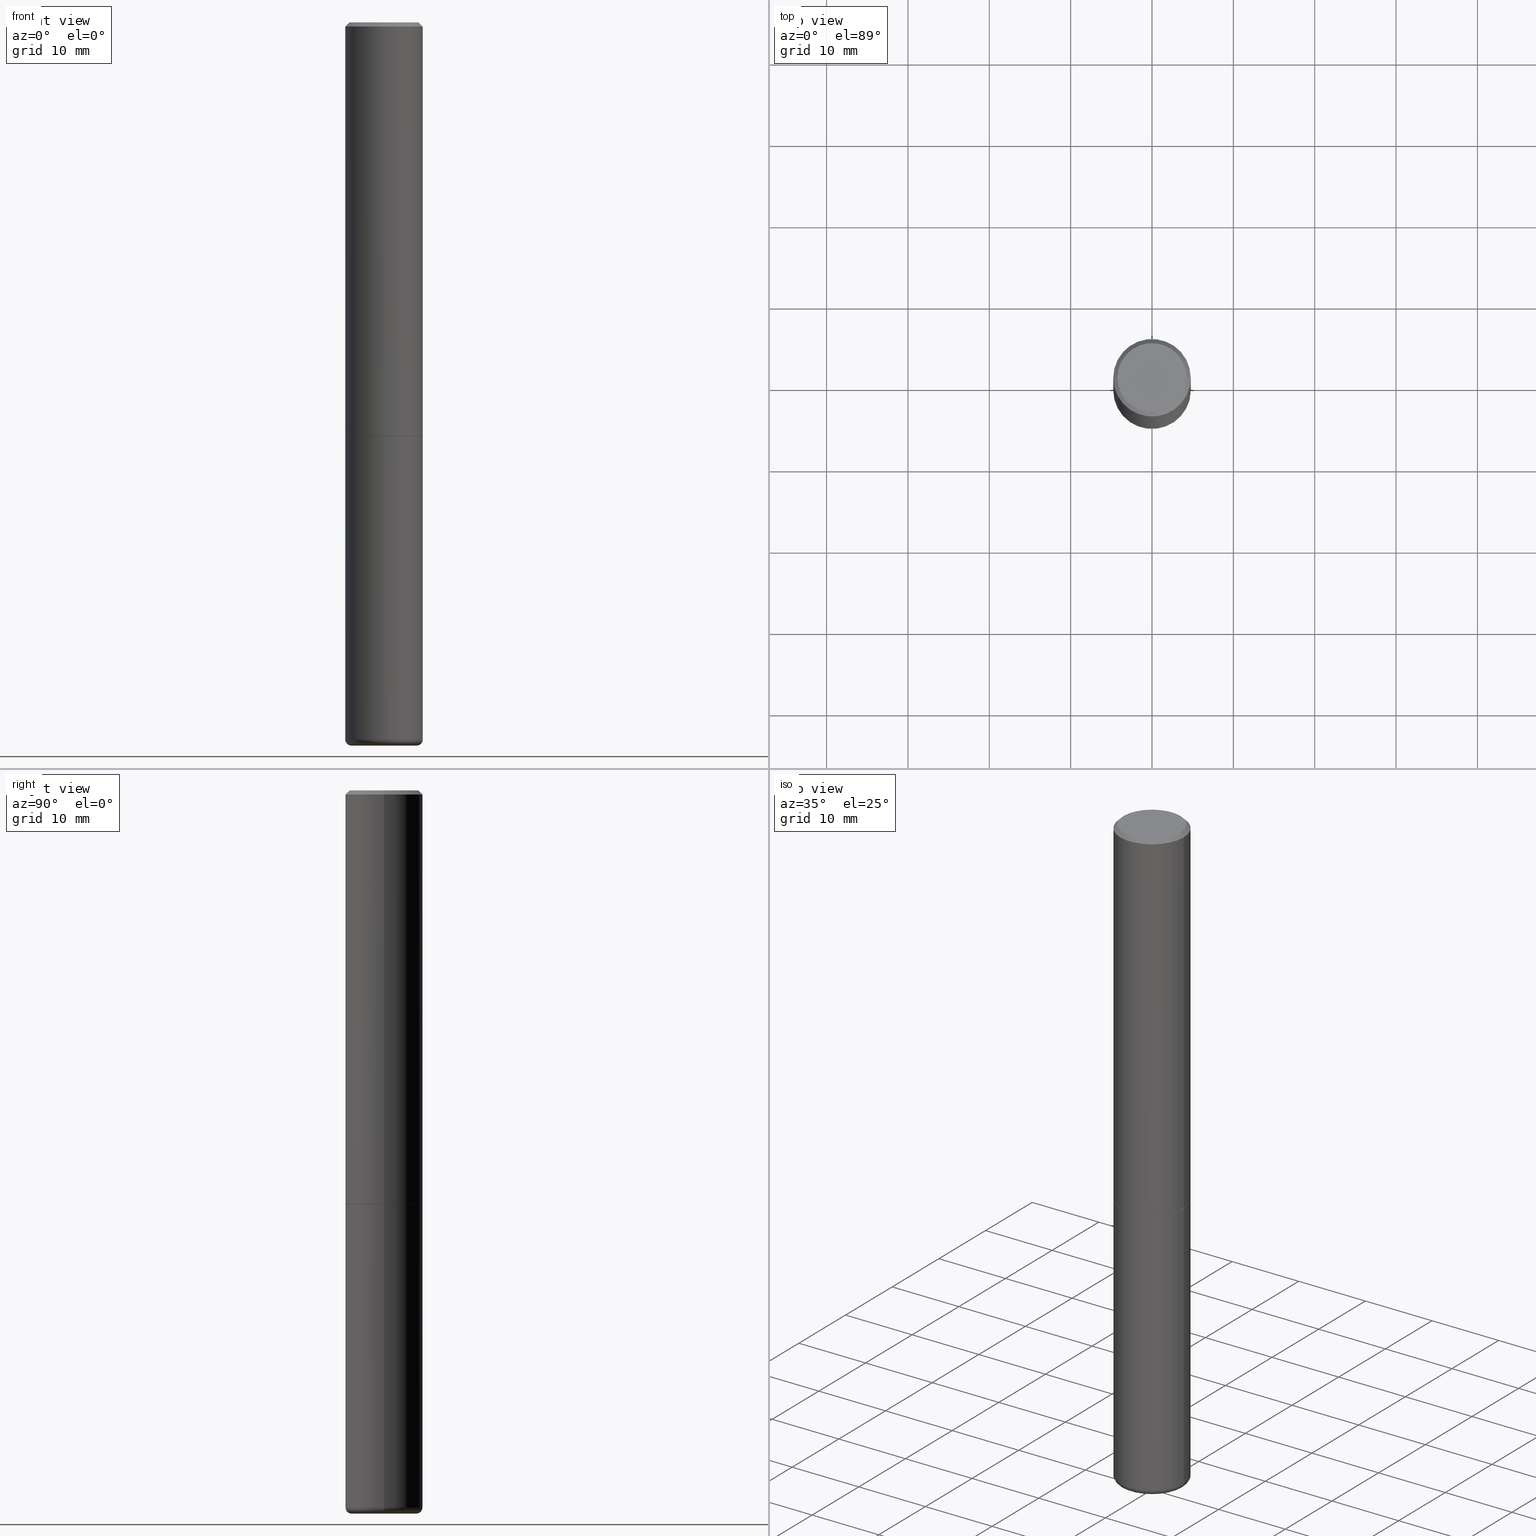
[diagram: canonical four-view strip — front | top / right | iso, engineering-drawing reading convention]
A machine part, canonical four-view strip (front | top / right | iso — engineering-drawing reading convention). The complete STEP part file that produces these views, byte-faithful:
ISO-10303-21;
HEADER;
FILE_DESCRIPTION (( 'STEP AP203' ),
    '1' );
FILE_NAME ('77169.STEP',
    '2024-03-06T16:15:41',
    ( '' ),
    ( '' ),
    'SwSTEP 2.0',
    'SolidWorks 2023',
    '' );
FILE_SCHEMA (( 'CONFIG_CONTROL_DESIGN' ));
ENDSEC;

DATA;
#1 = DIRECTION ( 'NONE',  ( -2.445468806185136597E-29, 3.491481338843145583E-15, 1.000000000000000000 ) ) ;
#2 = DATE_AND_TIME ( #129, #83 ) ;
#3 = PLANE ( 'NONE',  #104 ) ;
#4 = CARTESIAN_POINT ( 'NONE',  ( 0.1875000000000001388, -1.309305502066175994E-15, 9.142831454617388019E-30 ) ) ;
#5 = ORIENTED_EDGE ( 'NONE', *, *, #133, .F. ) ;
#6 = CARTESIAN_POINT ( 'NONE',  ( 4.890937612370272633E-29, -6.982962677686290376E-15, -1.999999999999999778 ) ) ;
#7 = COORDINATED_UNIVERSAL_TIME_OFFSET ( 5, 0, .BEHIND. ) ;
#8 = APPROVAL_ROLE ( '' ) ;
#9 =( NAMED_UNIT ( * ) PLANE_ANGLE_UNIT ( ) SI_UNIT ( $, .RADIAN. ) );
#10 = MECHANICAL_CONTEXT ( 'NONE', #282, 'mechanical' ) ;
#11 = CC_DESIGN_PERSON_AND_ORGANIZATION_ASSIGNMENT ( #185, #82, ( #414 ) ) ;
#12 = ORIENTED_EDGE ( 'NONE', *, *, #309, .F. ) ;
#13 = PERSON_AND_ORGANIZATION ( #154, #269 ) ;
#14 = CARTESIAN_POINT ( 'NONE',  ( 4.890937612370272633E-29, -6.982962677686290376E-15, -1.999999999999999778 ) ) ;
#15 = CARTESIAN_POINT ( 'NONE',  ( 0.1875000000000002498, -8.288776698413623955E-15, -1.998999999999999666 ) ) ;
#16 = ORIENTED_EDGE ( 'NONE', *, *, #411, .T. ) ;
#17 = AXIS2_PLACEMENT_3D ( 'NONE', #248, #219, #350 ) ;
#18 = COORDINATED_UNIVERSAL_TIME_OFFSET ( 5, 0, .BEHIND. ) ;
#19 = PRODUCT ( '77169', '77169', '', ( #10 ) ) ;
#20 = PERSON_AND_ORGANIZATION_ROLE ( 'classification_officer' ) ;
#21 = ORIENTED_EDGE ( 'NONE', *, *, #153, .F. ) ;
#22 = VERTEX_POINT ( 'NONE', #91 ) ;
#23 = EDGE_CURVE ( 'NONE', #274, #98, #88, .T. ) ;
#24 = CIRCLE ( 'NONE', #307, 0.1865000000000000546 ) ;
#25 = AXIS2_PLACEMENT_3D ( 'NONE', #35, #415, #321 ) ;
#26 = CC_DESIGN_SECURITY_CLASSIFICATION ( #184, ( #414 ) ) ;
#27 = ORIENTED_EDGE ( 'NONE', *, *, #138, .T. ) ;
#28 = EDGE_CURVE ( 'NONE', #78, #401, #163, .T. ) ;
#29 = DIRECTION ( 'NONE',  ( -1.000000000000000000, 7.105427357601001859E-15, 0.000000000000000000 ) ) ;
#30 = EDGE_LOOP ( 'NONE', ( #116, #231, #12, #270 ) ) ;
#31 = DIRECTION ( 'NONE',  ( 2.445468806185136597E-29, -3.491481338843145583E-15, -1.000000000000000000 ) ) ;
#32 = AXIS2_PLACEMENT_3D ( 'NONE', #384, #93, #298 ) ;
#33 = DIRECTION ( 'NONE',  ( -6.982962677686266711E-15, -1.000000000000000000, 3.491481338843145583E-15 ) ) ;
#34 = PRODUCT_DEFINITION ( 'UNKNOWN', '', #414, #186 ) ;
#35 = CARTESIAN_POINT ( 'NONE',  ( 4.890937612370282792E-31, -6.982962677686303935E-17, -0.02000000000000003858 ) ) ;
#36 = DIRECTION ( 'NONE',  ( 1.000000000000000000, -6.982962677686261189E-15, 0.000000000000000000 ) ) ;
#37 = ORIENTED_EDGE ( 'NONE', *, *, #210, .F. ) ;
#38 = CIRCLE ( 'NONE', #32, 0.1875000000000000278 ) ;
#39 = PERSON_AND_ORGANIZATION ( #154, #269 ) ;
#40 = CARTESIAN_POINT ( 'NONE',  ( 0.1575000000000000289, -1.332000130768659288E-14, -3.499999999999999112 ) ) ;
#41 = ORIENTED_EDGE ( 'NONE', *, *, #280, .T. ) ;
#42 = FACE_OUTER_BOUND ( 'NONE', #388, .T. ) ;
#43 = DIRECTION ( 'NONE',  ( -2.438088387897960049E-29, 3.491481338843145188E-15, 1.000000000000000000 ) ) ;
#44 = CIRCLE ( 'NONE', #122, 0.1875000000000000278 ) ;
#45 = CARTESIAN_POINT ( 'NONE',  ( 0.1875000000000000555, -1.356173001359025663E-15, -0.02000000000000003858 ) ) ;
#46 = EDGE_LOOP ( 'NONE', ( #273, #193, #187, #341 ) ) ;
#47 = ORIENTED_EDGE ( 'NONE', *, *, #59, .T. ) ;
#48 = APPROVAL_STATUS ( 'not_yet_approved' ) ;
#49 = PERSON_AND_ORGANIZATION_ROLE ( 'design_owner' ) ;
#50 = PERSON_AND_ORGANIZATION_ROLE ( 'creator' ) ;
#51 = ORIENTED_EDGE ( 'NONE', *, *, #300, .T. ) ;
#52 = VECTOR ( 'NONE', #331, 39.37007874015748143 ) ;
#53 = ORIENTED_EDGE ( 'NONE', *, *, #285, .T. ) ;
#54 = CIRCLE ( 'NONE', #290, 0.1675000000000000655 ) ;
#55 = EDGE_CURVE ( 'NONE', #278, #378, #117, .T. ) ;
#56 = UNCERTAINTY_MEASURE_WITH_UNIT (LENGTH_MEASURE( 1.000000000000000082E-05 ), #108, 'distance_accuracy_value', 'NONE');
#57 = DATE_AND_TIME ( #192, #405 ) ;
#58 = ORIENTED_EDGE ( 'NONE', *, *, #59, .F. ) ;
#59 = EDGE_CURVE ( 'NONE', #121, #22, #289, .T. ) ;
#60 = ORIENTED_EDGE ( 'NONE', *, *, #173, .T. ) ;
#61 = CARTESIAN_POINT ( 'NONE',  ( 0.1575000000000000289, -1.321525686752130109E-14, -3.469999999999999751 ) ) ;
#62 = VECTOR ( 'NONE', #392, 39.37007874015748143 ) ;
#63 = DIRECTION ( 'NONE',  ( -1.000000000000000000, 6.982962677686265922E-15, 0.000000000000000000 ) ) ;
#64 = VECTOR ( 'NONE', #340, 39.37007874015748143 ) ;
#65 = EDGE_CURVE ( 'NONE', #410, #119, #319, .T. ) ;
#66 = CARTESIAN_POINT ( 'NONE',  ( 8.485776757462424574E-29, -1.211544024578571439E-14, -3.469999999999999751 ) ) ;
#67 = DIRECTION ( 'NONE',  ( -2.445468806185136597E-29, 3.491481338843145583E-15, 1.000000000000000000 ) ) ;
#68 = CYLINDRICAL_SURFACE ( 'NONE', #268, 0.1875000000000001388 ) ;
#69 = ORIENTED_EDGE ( 'NONE', *, *, #285, .F. ) ;
#70 = CARTESIAN_POINT ( 'NONE',  ( 4.890937612370282792E-31, -6.982962677686303935E-17, -0.02000000000000003858 ) ) ;
#71 = EDGE_CURVE ( 'NONE', #410, #274, #24, .T. ) ;
#72 = CARTESIAN_POINT ( 'NONE',  ( -0.1875000000000000278, 1.332267629550188046E-15, -9.223003294227947991E-30 ) ) ;
#73 =( GEOMETRIC_REPRESENTATION_CONTEXT ( 3 ) GLOBAL_UNCERTAINTY_ASSIGNED_CONTEXT ( ( #56 ) ) GLOBAL_UNIT_ASSIGNED_CONTEXT ( ( #108, #9, #75 ) ) REPRESENTATION_CONTEXT ( 'NONE', 'WORKASPACE' ) );
#74 = LINE ( 'NONE', #396, #64 ) ;
#75 =( NAMED_UNIT ( * ) SI_UNIT ( $, .STERADIAN. ) SOLID_ANGLE_UNIT ( ) );
#76 = AXIS2_PLACEMENT_3D ( 'NONE', #387, #67, #330 ) ;
#77 = EDGE_CURVE ( 'NONE', #119, #365, #89, .T. ) ;
#78 = VERTEX_POINT ( 'NONE', #223 ) ;
#79 = APPLICATION_PROTOCOL_DEFINITION ( 'international standard', 'config_control_design', 1994, #282 ) ;
#80 = APPROVAL_STATUS ( 'not_yet_approved' ) ;
#81 = ADVANCED_FACE ( 'NONE', ( #205 ), #100, .T. ) ;
#82 = PERSON_AND_ORGANIZATION_ROLE ( 'design_supplier' ) ;
#83 = LOCAL_TIME ( 11, 15, 41.00000000000000000, #127 ) ;
#84 = APPROVAL_PERSON_ORGANIZATION ( #313, #169, #244 ) ;
#85 = CARTESIAN_POINT ( 'NONE',  ( -0.1575000000000000289, -1.094212624668219072E-14, -3.499999999999999112 ) ) ;
#86 = EDGE_LOOP ( 'NONE', ( #58, #207, #16, #279 ) ) ;
#87 = CC_DESIGN_PERSON_AND_ORGANIZATION_ASSIGNMENT ( #379, #50, ( #414 ) ) ;
#88 = LINE ( 'NONE', #287, #52 ) ;
#89 = LINE ( 'NONE', #4, #318 ) ;
#90 = AXIS2_PLACEMENT_3D ( 'NONE', #99, #263, #29 ) ;
#91 = CARTESIAN_POINT ( 'NONE',  ( -0.1675000000000000655, 1.204561061900881244E-15, -3.414809992081159176E-17 ) ) ;
#92 = CYLINDRICAL_SURFACE ( 'NONE', #151, 0.1875000000000000278 ) ;
#93 = DIRECTION ( 'NONE',  ( -2.445468806185136597E-29, 3.491481338843145583E-15, 1.000000000000000000 ) ) ;
#94 = EDGE_CURVE ( 'NONE', #167, #380, #252, .T. ) ;
#95 = AXIS2_PLACEMENT_3D ( 'NONE', #364, #413, #63 ) ;
#96 = DIRECTION ( 'NONE',  ( -2.445468806185136597E-29, 3.491481338843145583E-15, 1.000000000000000000 ) ) ;
#97 = PRODUCT_RELATED_PRODUCT_CATEGORY ( 'detail', '', ( #19 ) ) ;
#98 = VERTEX_POINT ( 'NONE', #230 ) ;
#99 = CARTESIAN_POINT ( 'NONE',  ( -0.1575000000000000289, -1.099633543696355521E-14, -3.469999999999999751 ) ) ;
#100 = CYLINDRICAL_SURFACE ( 'NONE', #218, 0.1875000000000000278 ) ;
#101 = CARTESIAN_POINT ( 'NONE',  ( 8.485776757462424574E-29, -1.211544024578571439E-14, -3.469999999999999751 ) ) ;
#102 = CARTESIAN_POINT ( 'NONE',  ( 0.000000000000000000, 0.000000000000000000, 0.000000000000000000 ) ) ;
#103 = DIRECTION ( 'NONE',  ( -2.445468806185136597E-29, 3.491481338843145583E-15, 1.000000000000000000 ) ) ;
#104 = AXIS2_PLACEMENT_3D ( 'NONE', #391, #195, #367 ) ;
#105 = CARTESIAN_POINT ( 'NONE',  ( 0.000000000000000000, 0.000000000000000000, 0.000000000000000000 ) ) ;
#106 = LENGTH_MEASURE_WITH_UNIT ( LENGTH_MEASURE( 0.02539999999999999897 ), #174 );
#107 = ADVANCED_FACE ( 'NONE', ( #264 ), #68, .T. ) ;
#108 =( CONVERSION_BASED_UNIT ( 'INCH', #106 ) LENGTH_UNIT ( ) NAMED_UNIT ( #149 ) );
#109 = FACE_OUTER_BOUND ( 'NONE', #46, .T. ) ;
#110 = LINE ( 'NONE', #242, #164 ) ;
#111 = ADVANCED_FACE ( 'NONE', ( #311 ), #113, .T. ) ;
#112 = SECURITY_CLASSIFICATION_LEVEL ( 'unclassified' ) ;
#113 = TOROIDAL_SURFACE ( 'NONE', #352, 0.1575000000000000289, 0.02999999999999969705 ) ;
#114 = AXIS2_PLACEMENT_3D ( 'NONE', #344, #267, #304 ) ;
#115 = ORIENTED_EDGE ( 'NONE', *, *, #55, .T. ) ;
#116 = ORIENTED_EDGE ( 'NONE', *, *, #71, .T. ) ;
#117 = LINE ( 'NONE', #72, #146 ) ;
#118 = APPROVAL_DATE_TIME ( #215, #169 ) ;
#119 = VERTEX_POINT ( 'NONE', #15 ) ;
#120 = DIRECTION ( 'NONE',  ( 1.000000000000000000, -6.982962677686265922E-15, 0.000000000000000000 ) ) ;
#121 = VERTEX_POINT ( 'NONE', #403 ) ;
#122 = AXIS2_PLACEMENT_3D ( 'NONE', #394, #103, #337 ) ;
#123 = MANIFOLD_SOLID_BREP ( 'Body-Move/Copy2[2]', #296 ) ;
#124 = CARTESIAN_POINT ( 'NONE',  ( -0.1865000000000000546, -5.652502021145479556E-15, -1.999999999999999778 ) ) ;
#125 = MANIFOLD_SOLID_BREP ( 'Body-Move/Copy2[1]', #332 ) ;
#126 = FACE_OUTER_BOUND ( 'NONE', #86, .T. ) ;
#127 = COORDINATED_UNIVERSAL_TIME_OFFSET ( 5, 0, .BEHIND. ) ;
#128 = DIRECTION ( 'NONE',  ( 1.000000000000000000, -6.982962677686266711E-15, 0.000000000000000000 ) ) ;
#129 = CALENDAR_DATE ( 2024, 6, 3 ) ;
#130 = AXIS2_PLACEMENT_3D ( 'NONE', #6, #43, #143 ) ;
#131 = DIRECTION ( 'NONE',  ( -2.445468806185136597E-29, 3.491481338843145583E-15, 1.000000000000000000 ) ) ;
#132 = DIRECTION ( 'NONE',  ( 1.000000000000000000, -6.982962677686261189E-15, 0.000000000000000000 ) ) ;
#133 = EDGE_CURVE ( 'NONE', #98, #194, #110, .T. ) ;
#134 = FACE_OUTER_BOUND ( 'NONE', #155, .T. ) ;
#135 = DIRECTION ( 'NONE',  ( -2.445468806185136597E-29, 3.491481338843145583E-15, 1.000000000000000000 ) ) ;
#136 = VECTOR ( 'NONE', #261, 39.37007874015748143 ) ;
#137 = CALENDAR_DATE ( 2024, 6, 3 ) ;
#138 = EDGE_CURVE ( 'NONE', #274, #410, #305, .T. ) ;
#139 = DIRECTION ( 'NONE',  ( 1.000000000000000000, -6.982962677686266711E-15, 4.876176775795936914E-29 ) ) ;
#140 = DIRECTION ( 'NONE',  ( -2.445468806185136597E-29, 3.491481338843145583E-15, 1.000000000000000000 ) ) ;
#141 = EDGE_LOOP ( 'NONE', ( #247, #314 ) ) ;
#142 = SHAPE_DEFINITION_REPRESENTATION ( #281, #171 ) ;
#143 = DIRECTION ( 'NONE',  ( 1.000000000000000000, -6.982962677686265922E-15, 4.876176775795935793E-29 ) ) ;
#144 = CARTESIAN_POINT ( 'NONE',  ( 8.485776757462424574E-29, -1.211544024578571439E-14, -3.469999999999999751 ) ) ;
#145 = ORIENTED_EDGE ( 'NONE', *, *, #196, .F. ) ;
#146 = VECTOR ( 'NONE', #170, 39.37007874015748143 ) ;
#147 = CIRCLE ( 'NONE', #357, 0.1875000000000000278 ) ;
#148 = CC_DESIGN_APPROVAL ( #169, ( #184 ) ) ;
#149 = DIMENSIONAL_EXPONENTS ( 1.000000000000000000, 0.000000000000000000, 0.000000000000000000, 0.000000000000000000, 0.000000000000000000, 0.000000000000000000, 0.000000000000000000 ) ;
#150 = DIRECTION ( 'NONE',  ( 1.000000000000000000, -6.982962677686261189E-15, 0.000000000000000000 ) ) ;
#151 = AXIS2_PLACEMENT_3D ( 'NONE', #161, #224, #158 ) ;
#152 = APPROVAL_DATE_TIME ( #57, #228 ) ;
#153 = EDGE_CURVE ( 'NONE', #401, #378, #44, .T. ) ;
#154 = PERSON ( 'UNSPECIFIED', 'UNSPECIFIED', 'UNSPECIFIED', ('UNSPECIFIED'), ('UNSPECIFIED'), ('UNSPECIFIED') ) ;
#155 = EDGE_LOOP ( 'NONE', ( #41, #47 ) ) ;
#156 = PERSON_AND_ORGANIZATION ( #154, #269 ) ;
#157 = CARTESIAN_POINT ( 'NONE',  ( 0.000000000000000000, 0.000000000000000000, 0.000000000000000000 ) ) ;
#158 = DIRECTION ( 'NONE',  ( 1.000000000000000000, -6.982962677686265922E-15, 4.876176775795935793E-29 ) ) ;
#159 = AXIS2_PLACEMENT_3D ( 'NONE', #225, #292, #232 ) ;
#160 = PERSON_AND_ORGANIZATION_ROLE ( 'creator' ) ;
#161 = CARTESIAN_POINT ( 'NONE',  ( 0.000000000000000000, 0.000000000000000000, 0.000000000000000000 ) ) ;
#162 = FACE_OUTER_BOUND ( 'NONE', #284, .T. ) ;
#163 = LINE ( 'NONE', #363, #62 ) ;
#164 = VECTOR ( 'NONE', #209, 39.37007874015748143 ) ;
#165 = CIRCLE ( 'NONE', #25, 0.1875000000000000555 ) ;
#166 = FACE_OUTER_BOUND ( 'NONE', #374, .T. ) ;
#167 = VERTEX_POINT ( 'NONE', #85 ) ;
#168 = CYLINDRICAL_SURFACE ( 'NONE', #276, 0.1875000000000001388 ) ;
#169 = APPROVAL ( #80, 'UNSPECIFIED' ) ;
#170 = DIRECTION ( 'NONE',  ( -2.445468806185136877E-29, 3.491481338843145188E-15, 1.000000000000000000 ) ) ;
#171 = ADVANCED_BREP_SHAPE_REPRESENTATION ( '77169', ( #125, #123, #312 ), #73 ) ;
#172 = APPROVAL_STATUS ( 'not_yet_approved' ) ;
#173 = EDGE_CURVE ( 'NONE', #380, #167, #220, .T. ) ;
#174 =( LENGTH_UNIT ( ) NAMED_UNIT ( * ) SI_UNIT ( $, .METRE. ) );
#175 = CIRCLE ( 'NONE', #333, 0.1875000000000002498 ) ;
#176 = CONICAL_SURFACE ( 'NONE', #95, 0.1875000000000000555, 0.7853981633974479459 ) ;
#177 = DIRECTION ( 'NONE',  ( 1.000000000000000000, -6.982962677686265922E-15, 0.000000000000000000 ) ) ;
#178 = ORIENTED_EDGE ( 'NONE', *, *, #173, .F. ) ;
#179 = COORDINATED_UNIVERSAL_TIME_OFFSET ( 5, 0, .BEHIND. ) ;
#180 = CARTESIAN_POINT ( 'NONE',  ( 0.1875000000000000278, -8.292268179752465385E-15, -1.999999999999999778 ) ) ;
#181 = ADVANCED_FACE ( 'NONE', ( #408 ), #339, .T. ) ;
#182 = DATE_TIME_ROLE ( 'classification_date' ) ;
#183 = APPROVAL_PERSON_ORGANIZATION ( #334, #228, #303 ) ;
#184 = SECURITY_CLASSIFICATION ( '', '', #112 ) ;
#185 = PERSON_AND_ORGANIZATION ( #154, #269 ) ;
#186 = DESIGN_CONTEXT ( 'detailed design', #293, 'design' ) ;
#187 = ORIENTED_EDGE ( 'NONE', *, *, #411, .F. ) ;
#188 = ADVANCED_FACE ( 'NONE', ( #162 ), #92, .T. ) ;
#189 = VECTOR ( 'NONE', #299, 39.37007874015748143 ) ;
#190 = AXIS2_PLACEMENT_3D ( 'NONE', #66, #291, #36 ) ;
#191 = ORIENTED_EDGE ( 'NONE', *, *, #153, .T. ) ;
#192 = CALENDAR_DATE ( 2024, 6, 3 ) ;
#193 = ORIENTED_EDGE ( 'NONE', *, *, #133, .T. ) ;
#194 = VERTEX_POINT ( 'NONE', #356 ) ;
#195 = DIRECTION ( 'NONE',  ( 2.438088387897960049E-29, -3.491481338843145188E-15, -1.000000000000000000 ) ) ;
#196 = EDGE_CURVE ( 'NONE', #380, #78, #386, .T. ) ;
#197 = EDGE_LOOP ( 'NONE', ( #60, #53, #37, #145 ) ) ;
#198 = CARTESIAN_POINT ( 'NONE',  ( 4.890937612370272633E-29, -6.982962677686290376E-15, -1.999999999999999778 ) ) ;
#199 = CIRCLE ( 'NONE', #76, 0.1875000000000002498 ) ;
#200 = DIRECTION ( 'NONE',  ( -2.445468806185136597E-29, 3.491481338843145583E-15, 1.000000000000000000 ) ) ;
#201 = CC_DESIGN_DATE_AND_TIME_ASSIGNMENT ( #349, #182, ( #184 ) ) ;
#202 = PLANE ( 'NONE',  #399 ) ;
#203 = ADVANCED_FACE ( 'NONE', ( #294 ), #417, .F. ) ;
#204 = DIRECTION ( 'NONE',  ( 1.000000000000000000, -6.982962677686269077E-15, 0.000000000000000000 ) ) ;
#205 = FACE_OUTER_BOUND ( 'NONE', #406, .T. ) ;
#206 = AXIS2_PLACEMENT_3D ( 'NONE', #70, #241, #177 ) ;
#207 = ORIENTED_EDGE ( 'NONE', *, *, #326, .T. ) ;
#208 = APPLICATION_PROTOCOL_DEFINITION ( 'international standard', 'config_control_design', 1994, #293 ) ;
#209 = DIRECTION ( 'NONE',  ( -2.445468806185136877E-29, 3.491481338843145188E-15, 1.000000000000000000 ) ) ;
#210 = EDGE_CURVE ( 'NONE', #78, #278, #212, .T. ) ;
#211 = CARTESIAN_POINT ( 'NONE',  ( 0.1865000000000000546, -8.285285217074779370E-15, -1.999999999999999778 ) ) ;
#212 = CIRCLE ( 'NONE', #190, 0.1875000000000000278 ) ;
#213 = LOCAL_TIME ( 11, 15, 41.00000000000000000, #18 ) ;
#214 = ADVANCED_FACE ( 'NONE', ( #126 ), #176, .T. ) ;
#215 = DATE_AND_TIME ( #398, #213 ) ;
#216 = EDGE_LOOP ( 'NONE', ( #5, #329, #382, #361 ) ) ;
#217 = ORIENTED_EDGE ( 'NONE', *, *, #210, .T. ) ;
#218 = AXIS2_PLACEMENT_3D ( 'NONE', #157, #412, #254 ) ;
#219 = DIRECTION ( 'NONE',  ( -2.445468806185136597E-29, 3.491481338843145583E-15, 1.000000000000000000 ) ) ;
#220 = CIRCLE ( 'NONE', #358, 0.1575000000000000289 ) ;
#221 = DIRECTION ( 'NONE',  ( -2.445468806185136877E-29, 3.491481338843145188E-15, 1.000000000000000000 ) ) ;
#222 = ADVANCED_FACE ( 'NONE', ( #134 ), #202, .F. ) ;
#223 = CARTESIAN_POINT ( 'NONE',  ( 0.1874999999999998335, -1.342474574785188940E-14, -3.469999999999999751 ) ) ;
#224 = DIRECTION ( 'NONE',  ( -2.445468806185136597E-29, 3.491481338843145583E-15, 1.000000000000000000 ) ) ;
#225 = CARTESIAN_POINT ( 'NONE',  ( 4.890937612370272633E-29, -6.982962677686290376E-15, -1.999999999999999778 ) ) ;
#226 = AXIS2_PLACEMENT_3D ( 'NONE', #336, #275, #402 ) ;
#227 = LINE ( 'NONE', #359, #136 ) ;
#228 = APPROVAL ( #172, 'UNSPECIFIED' ) ;
#229 = CARTESIAN_POINT ( 'NONE',  ( 4.890937612370282792E-31, -6.982962677686303935E-17, -0.02000000000000003858 ) ) ;
#230 = CARTESIAN_POINT ( 'NONE',  ( -0.1875000000000002220, -2.192382782011963935E-15, -1.998999999999999666 ) ) ;
#231 = ORIENTED_EDGE ( 'NONE', *, *, #23, .T. ) ;
#232 = DIRECTION ( 'NONE',  ( -1.000000000000000000, 6.982962677686265922E-15, -4.876176775795935793E-29 ) ) ;
#233 = ORIENTED_EDGE ( 'NONE', *, *, #326, .F. ) ;
#234 = CC_DESIGN_APPROVAL ( #228, ( #34 ) ) ;
#235 = DIRECTION ( 'NONE',  ( 1.000000000000000000, 0.000000000000000000, 0.000000000000000000 ) ) ;
#236 = CARTESIAN_POINT ( 'NONE',  ( -0.1875000000000000278, -8.216933832185813748E-15, -1.999999999999999778 ) ) ;
#237 = DATE_AND_TIME ( #137, #245 ) ;
#238 = CARTESIAN_POINT ( 'NONE',  ( 0.000000000000000000, 0.000000000000000000, 0.000000000000000000 ) ) ;
#239 = AXIS2_PLACEMENT_3D ( 'NONE', #229, #31, #255 ) ;
#240 = ORIENTED_EDGE ( 'NONE', *, *, #94, .T. ) ;
#241 = DIRECTION ( 'NONE',  ( -2.445468806185136597E-29, 3.491481338843145583E-15, 1.000000000000000000 ) ) ;
#242 = CARTESIAN_POINT ( 'NONE',  ( -0.1875000000000001388, 1.332267629550188835E-15, -9.223003294227954997E-30 ) ) ;
#243 = CARTESIAN_POINT ( 'NONE',  ( 8.559140821647976968E-29, -1.222018468595100619E-14, -3.499999999999999112 ) ) ;
#244 = APPROVAL_ROLE ( '' ) ;
#245 = LOCAL_TIME ( 11, 15, 41.00000000000000000, #179 ) ;
#246 = ORIENTED_EDGE ( 'NONE', *, *, #196, .T. ) ;
#247 = ORIENTED_EDGE ( 'NONE', *, *, #71, .F. ) ;
#248 = CARTESIAN_POINT ( 'NONE',  ( 8.350811314681758556E-46, -1.192274536304357760E-31, -3.414809992080329023E-17 ) ) ;
#249 = ORIENTED_EDGE ( 'NONE', *, *, #338, .F. ) ;
#250 = EDGE_CURVE ( 'NONE', #378, #401, #147, .T. ) ;
#251 = ORIENTED_EDGE ( 'NONE', *, *, #28, .F. ) ;
#252 = CIRCLE ( 'NONE', #324, 0.1575000000000000289 ) ;
#253 = CONICAL_SURFACE ( 'NONE', #226, 0.1865000000000000546, 0.7853981633975165577 ) ;
#254 = DIRECTION ( 'NONE',  ( 1.000000000000000000, -6.982962677686265922E-15, 4.876176775795935793E-29 ) ) ;
#255 = DIRECTION ( 'NONE',  ( -1.000000000000000000, 6.982962677686265922E-15, 0.000000000000000000 ) ) ;
#256 = CARTESIAN_POINT ( 'NONE',  ( -0.1874999999999998335, -1.078317261623552812E-14, -3.469999999999999751 ) ) ;
#257 = FACE_OUTER_BOUND ( 'NONE', #335, .T. ) ;
#258 = ADVANCED_FACE ( 'NONE', ( #257 ), #375, .T. ) ;
#259 = CIRCLE ( 'NONE', #90, 0.02999999999999967970 ) ;
#260 = LOCAL_TIME ( 11, 15, 41.00000000000000000, #409 ) ;
#261 = DIRECTION ( 'NONE',  ( 0.7071067811865472397, -7.319954787623254468E-15, -0.7071067811865477948 ) ) ;
#262 = ORIENTED_EDGE ( 'NONE', *, *, #55, .F. ) ;
#263 = DIRECTION ( 'NONE',  ( 7.105427357601001859E-15, 1.000000000000000000, -3.491481338843145583E-15 ) ) ;
#264 = FACE_OUTER_BOUND ( 'NONE', #216, .T. ) ;
#265 = EDGE_CURVE ( 'NONE', #194, #365, #165, .T. ) ;
#266 = DIRECTION ( 'NONE',  ( 1.000000000000000000, -6.982962677686265922E-15, 0.000000000000000000 ) ) ;
#267 = DIRECTION ( 'NONE',  ( -2.445468806185136597E-29, 3.491481338843145583E-15, 1.000000000000000000 ) ) ;
#268 = AXIS2_PLACEMENT_3D ( 'NONE', #102, #135, #139 ) ;
#269 = ORGANIZATION ( 'UNSPECIFIED', 'UNSPECIFIED', '' ) ;
#270 = ORIENTED_EDGE ( 'NONE', *, *, #65, .F. ) ;
#271 = FACE_OUTER_BOUND ( 'NONE', #30, .T. ) ;
#272 = CC_DESIGN_DATE_AND_TIME_ASSIGNMENT ( #2, #306, ( #34 ) ) ;
#273 = ORIENTED_EDGE ( 'NONE', *, *, #309, .T. ) ;
#274 = VERTEX_POINT ( 'NONE', #124 ) ;
#275 = DIRECTION ( 'NONE',  ( -2.445468806185136597E-29, 3.491481338843145583E-15, 1.000000000000000000 ) ) ;
#276 = AXIS2_PLACEMENT_3D ( 'NONE', #105, #371, #301 ) ;
#277 = DIRECTION ( 'NONE',  ( 1.000000000000000000, -6.982962677686263555E-15, 4.883557194083111219E-29 ) ) ;
#278 = VERTEX_POINT ( 'NONE', #256 ) ;
#279 = ORIENTED_EDGE ( 'NONE', *, *, #351, .F. ) ;
#280 = EDGE_CURVE ( 'NONE', #22, #121, #54, .T. ) ;
#281 = PRODUCT_DEFINITION_SHAPE ( 'NONE', 'NONE',  #34 ) ;
#282 = APPLICATION_CONTEXT ( 'configuration controlled 3d designs of mechanical parts and assemblies' ) ;
#283 = APPROVAL_DATE_TIME ( #237, #389 ) ;
#284 = EDGE_LOOP ( 'NONE', ( #262, #51, #315, #302 ) ) ;
#285 = EDGE_CURVE ( 'NONE', #167, #278, #259, .T. ) ;
#286 = ORIENTED_EDGE ( 'NONE', *, *, #351, .T. ) ;
#287 = CARTESIAN_POINT ( 'NONE',  ( -0.1865000000000000546, -5.657800475493702747E-15, -1.999999999999999778 ) ) ;
#288 = DIRECTION ( 'NONE',  ( 1.000000000000000000, -6.982962677686277755E-15, 0.000000000000000000 ) ) ;
#289 = CIRCLE ( 'NONE', #17, 0.1675000000000000655 ) ;
#290 = AXIS2_PLACEMENT_3D ( 'NONE', #362, #131, #416 ) ;
#291 = DIRECTION ( 'NONE',  ( -2.445468806185136597E-29, 3.491481338843145583E-15, 1.000000000000000000 ) ) ;
#292 = DIRECTION ( 'NONE',  ( 2.438088387897960049E-29, -3.491481338843145188E-15, -1.000000000000000000 ) ) ;
#293 = APPLICATION_CONTEXT ( 'configuration controlled 3d designs of mechanical parts and assemblies' ) ;
#294 = FACE_OUTER_BOUND ( 'NONE', #348, .T. ) ;
#295 = CARTESIAN_POINT ( 'NONE',  ( 4.890937612370272633E-29, -6.982962677686290376E-15, -1.999999999999999778 ) ) ;
#296 = CLOSED_SHELL ( 'NONE', ( #377, #372, #214, #258, #107, #397, #407, #222 ) ) ;
#297 = CIRCLE ( 'NONE', #206, 0.1875000000000000555 ) ;
#298 = DIRECTION ( 'NONE',  ( 1.000000000000000000, -6.982962677686261189E-15, 0.000000000000000000 ) ) ;
#299 = DIRECTION ( 'NONE',  ( 0.7071067811865957564, -2.468850131082761932E-15, 0.7071067811864992780 ) ) ;
#300 = EDGE_CURVE ( 'NONE', #278, #78, #38, .T. ) ;
#301 = DIRECTION ( 'NONE',  ( 1.000000000000000000, -6.982962677686266711E-15, 4.876176775795936914E-29 ) ) ;
#302 = ORIENTED_EDGE ( 'NONE', *, *, #250, .F. ) ;
#303 = APPROVAL_ROLE ( '' ) ;
#304 = DIRECTION ( 'NONE',  ( 1.000000000000000000, -6.982962677686265922E-15, 0.000000000000000000 ) ) ;
#305 = CIRCLE ( 'NONE', #114, 0.1865000000000000546 ) ;
#306 = DATE_TIME_ROLE ( 'creation_date' ) ;
#307 = AXIS2_PLACEMENT_3D ( 'NONE', #295, #320, #120 ) ;
#308 = ORIENTED_EDGE ( 'NONE', *, *, #265, .T. ) ;
#309 = EDGE_CURVE ( 'NONE', #119, #98, #175, .T. ) ;
#310 = FACE_OUTER_BOUND ( 'NONE', #141, .T. ) ;
#311 = FACE_OUTER_BOUND ( 'NONE', #197, .T. ) ;
#312 = AXIS2_PLACEMENT_3D ( 'NONE', #238, #366, #235 ) ;
#313 = PERSON_AND_ORGANIZATION ( #154, #269 ) ;
#314 = ORIENTED_EDGE ( 'NONE', *, *, #138, .F. ) ;
#315 = ORIENTED_EDGE ( 'NONE', *, *, #28, .T. ) ;
#316 = ORIENTED_EDGE ( 'NONE', *, *, #280, .F. ) ;
#317 = EDGE_LOOP ( 'NONE', ( #69, #240, #246, #353 ) ) ;
#318 = VECTOR ( 'NONE', #221, 39.37007874015748143 ) ;
#319 = LINE ( 'NONE', #322, #189 ) ;
#320 = DIRECTION ( 'NONE',  ( -2.445468806185136597E-29, 3.491481338843145583E-15, 1.000000000000000000 ) ) ;
#321 = DIRECTION ( 'NONE',  ( 1.000000000000000000, -6.982962677686265922E-15, 0.000000000000000000 ) ) ;
#322 = CARTESIAN_POINT ( 'NONE',  ( 0.1865000000000000546, -8.285285217074779370E-15, -1.999999999999999778 ) ) ;
#323 = DIRECTION ( 'NONE',  ( -2.445468806185136597E-29, 3.491481338843145583E-15, 1.000000000000000000 ) ) ;
#324 = AXIS2_PLACEMENT_3D ( 'NONE', #354, #1, #132 ) ;
#325 = APPROVAL_PERSON_ORGANIZATION ( #39, #389, #8 ) ;
#326 = EDGE_CURVE ( 'NONE', #121, #365, #227, .T. ) ;
#327 = DIRECTION ( 'NONE',  ( 1.000000000000000000, -6.982962677686263555E-15, 4.883557194083111219E-29 ) ) ;
#328 = DIRECTION ( 'NONE',  ( -1.000000000000000000, 6.982962677686265922E-15, -4.876176775795935793E-29 ) ) ;
#329 = ORIENTED_EDGE ( 'NONE', *, *, #338, .T. ) ;
#330 = DIRECTION ( 'NONE',  ( 1.000000000000000000, -6.982962677686269077E-15, 0.000000000000000000 ) ) ;
#331 = DIRECTION ( 'NONE',  ( -0.7071067811865957564, 7.493145998870527710E-15, 0.7071067811864992780 ) ) ;
#332 = CLOSED_SHELL ( 'NONE', ( #81, #111, #203, #188, #181, #343 ) ) ;
#333 = AXIS2_PLACEMENT_3D ( 'NONE', #385, #96, #204 ) ;
#334 = PERSON_AND_ORGANIZATION ( #154, #269 ) ;
#335 = EDGE_LOOP ( 'NONE', ( #233, #316, #286, #308 ) ) ;
#336 = CARTESIAN_POINT ( 'NONE',  ( 4.890937612370272633E-29, -6.982962677686290376E-15, -1.999999999999999778 ) ) ;
#337 = DIRECTION ( 'NONE',  ( 1.000000000000000000, -6.982962677686266711E-15, 0.000000000000000000 ) ) ;
#338 = EDGE_CURVE ( 'NONE', #98, #119, #199, .T. ) ;
#339 = TOROIDAL_SURFACE ( 'NONE', #346, 0.1575000000000000289, 0.02999999999999969705 ) ;
#340 = DIRECTION ( 'NONE',  ( -0.7071067811865472397, 2.468850131082253905E-15, -0.7071067811865477948 ) ) ;
#341 = ORIENTED_EDGE ( 'NONE', *, *, #77, .F. ) ;
#342 = PERSON_AND_ORGANIZATION ( #154, #269 ) ;
#343 = ADVANCED_FACE ( 'NONE', ( #166 ), #3, .T. ) ;
#344 = CARTESIAN_POINT ( 'NONE',  ( 4.890937612370272633E-29, -6.982962677686290376E-15, -1.999999999999999778 ) ) ;
#345 = ORIENTED_EDGE ( 'NONE', *, *, #94, .F. ) ;
#346 = AXIS2_PLACEMENT_3D ( 'NONE', #101, #200, #327 ) ;
#347 = DIRECTION ( 'NONE',  ( -2.445468806185136597E-29, 3.491481338843145583E-15, 1.000000000000000000 ) ) ;
#348 = EDGE_LOOP ( 'NONE', ( #191, #376 ) ) ;
#349 = DATE_AND_TIME ( #404, #260 ) ;
#350 = DIRECTION ( 'NONE',  ( 1.000000000000000000, -6.982962677686265922E-15, 4.875370901645438946E-29 ) ) ;
#351 = EDGE_CURVE ( 'NONE', #22, #194, #74, .T. ) ;
#352 = AXIS2_PLACEMENT_3D ( 'NONE', #144, #140, #277 ) ;
#353 = ORIENTED_EDGE ( 'NONE', *, *, #300, .F. ) ;
#354 = CARTESIAN_POINT ( 'NONE',  ( 8.559140821647976968E-29, -1.222018468595100619E-14, -3.499999999999999112 ) ) ;
#355 = DIRECTION ( 'NONE',  ( 2.438088387897960049E-29, -3.491481338843145188E-15, -1.000000000000000000 ) ) ;
#356 = CARTESIAN_POINT ( 'NONE',  ( -0.1875000000000000555, 1.239475875289312104E-15, -0.02000000000000003858 ) ) ;
#357 = AXIS2_PLACEMENT_3D ( 'NONE', #198, #323, #128 ) ;
#358 = AXIS2_PLACEMENT_3D ( 'NONE', #243, #347, #150 ) ;
#359 = CARTESIAN_POINT ( 'NONE',  ( 0.1875000000000000555, -1.356173001359025663E-15, -0.02000000000000003858 ) ) ;
#360 = CC_DESIGN_PERSON_AND_ORGANIZATION_ASSIGNMENT ( #13, #20, ( #184 ) ) ;
#361 = ORIENTED_EDGE ( 'NONE', *, *, #265, .F. ) ;
#362 = CARTESIAN_POINT ( 'NONE',  ( 8.350811314681758556E-46, -1.192274536304357760E-31, -3.414809992080329023E-17 ) ) ;
#363 = CARTESIAN_POINT ( 'NONE',  ( 0.1875000000000000278, -1.309305502066175008E-15, 9.142831454617381013E-30 ) ) ;
#364 = CARTESIAN_POINT ( 'NONE',  ( 4.890937612370282792E-31, -6.982962677686303935E-17, -0.02000000000000003858 ) ) ;
#365 = VERTEX_POINT ( 'NONE', #45 ) ;
#366 = DIRECTION ( 'NONE',  ( 0.000000000000000000, 0.000000000000000000, 1.000000000000000000 ) ) ;
#367 = DIRECTION ( 'NONE',  ( -1.000000000000000000, 6.982962677686265922E-15, -4.876176775795935793E-29 ) ) ;
#368 = CC_DESIGN_PERSON_AND_ORGANIZATION_ASSIGNMENT ( #342, #49, ( #19 ) ) ;
#369 = DIRECTION ( 'NONE',  ( -2.445468806185136597E-29, 3.491481338843145583E-15, 1.000000000000000000 ) ) ;
#370 = AXIS2_PLACEMENT_3D ( 'NONE', #61, #33, #288 ) ;
#371 = DIRECTION ( 'NONE',  ( -2.445468806185136597E-29, 3.491481338843145583E-15, 1.000000000000000000 ) ) ;
#372 = ADVANCED_FACE ( 'NONE', ( #109 ), #168, .T. ) ;
#373 = ORIENTED_EDGE ( 'NONE', *, *, #23, .F. ) ;
#374 = EDGE_LOOP ( 'NONE', ( #178, #345 ) ) ;
#375 = CONICAL_SURFACE ( 'NONE', #239, 0.1875000000000000555, 0.7853981633974479459 ) ;
#376 = ORIENTED_EDGE ( 'NONE', *, *, #250, .T. ) ;
#377 = ADVANCED_FACE ( 'NONE', ( #271 ), #395, .T. ) ;
#378 = VERTEX_POINT ( 'NONE', #236 ) ;
#379 = PERSON_AND_ORGANIZATION ( #154, #269 ) ;
#380 = VERTEX_POINT ( 'NONE', #40 ) ;
#381 = AXIS2_PLACEMENT_3D ( 'NONE', #14, #369, #266 ) ;
#382 = ORIENTED_EDGE ( 'NONE', *, *, #77, .T. ) ;
#383 = CARTESIAN_POINT ( 'NONE',  ( 1.169646248512449792E-15, 0.1675000000000000655, -6.018971742166287723E-16 ) ) ;
#384 = CARTESIAN_POINT ( 'NONE',  ( 8.485776757462424574E-29, -1.211544024578571439E-14, -3.469999999999999751 ) ) ;
#385 = CARTESIAN_POINT ( 'NONE',  ( 4.888492143564087030E-29, -6.979471196347446580E-15, -1.998999999999999666 ) ) ;
#386 = CIRCLE ( 'NONE', #370, 0.02999999999999967970 ) ;
#387 = CARTESIAN_POINT ( 'NONE',  ( 4.888492143564087030E-29, -6.979471196347446580E-15, -1.998999999999999666 ) ) ;
#388 = EDGE_LOOP ( 'NONE', ( #373, #27, #390, #249 ) ) ;
#389 = APPROVAL ( #48, 'UNSPECIFIED' ) ;
#390 = ORIENTED_EDGE ( 'NONE', *, *, #65, .T. ) ;
#391 = CARTESIAN_POINT ( 'NONE',  ( 1.703753752425671468E-28, -7.863804744316868633E-17, -3.499999999999999112 ) ) ;
#392 = DIRECTION ( 'NONE',  ( -2.445468806185136877E-29, 3.491481338843145188E-15, 1.000000000000000000 ) ) ;
#393 = PLANE ( 'NONE',  #130 ) ;
#394 = CARTESIAN_POINT ( 'NONE',  ( 4.890937612370272633E-29, -6.982962677686290376E-15, -1.999999999999999778 ) ) ;
#395 = CONICAL_SURFACE ( 'NONE', #381, 0.1865000000000000546, 0.7853981633975165577 ) ;
#396 = CARTESIAN_POINT ( 'NONE',  ( -0.1875000000000000555, 1.239475875289312104E-15, -0.02000000000000003858 ) ) ;
#397 = ADVANCED_FACE ( 'NONE', ( #42 ), #253, .T. ) ;
#398 = CALENDAR_DATE ( 2024, 6, 3 ) ;
#399 = AXIS2_PLACEMENT_3D ( 'NONE', #383, #355, #328 ) ;
#400 = CC_DESIGN_APPROVAL ( #389, ( #414 ) ) ;
#401 = VERTEX_POINT ( 'NONE', #180 ) ;
#402 = DIRECTION ( 'NONE',  ( 1.000000000000000000, -6.982962677686265922E-15, 0.000000000000000000 ) ) ;
#403 = CARTESIAN_POINT ( 'NONE',  ( 0.1675000000000000655, -1.252653207992878880E-15, -3.414809992079482230E-17 ) ) ;
#404 = CALENDAR_DATE ( 2024, 6, 3 ) ;
#405 = LOCAL_TIME ( 11, 15, 41.00000000000000000, #7 ) ;
#406 = EDGE_LOOP ( 'NONE', ( #217, #115, #21, #251 ) ) ;
#407 = ADVANCED_FACE ( 'NONE', ( #310 ), #393, .F. ) ;
#408 = FACE_OUTER_BOUND ( 'NONE', #317, .T. ) ;
#409 = COORDINATED_UNIVERSAL_TIME_OFFSET ( 5, 0, .BEHIND. ) ;
#410 = VERTEX_POINT ( 'NONE', #211 ) ;
#411 = EDGE_CURVE ( 'NONE', #365, #194, #297, .T. ) ;
#412 = DIRECTION ( 'NONE',  ( -2.445468806185136597E-29, 3.491481338843145583E-15, 1.000000000000000000 ) ) ;
#413 = DIRECTION ( 'NONE',  ( 2.445468806185136597E-29, -3.491481338843145583E-15, -1.000000000000000000 ) ) ;
#414 = PRODUCT_DEFINITION_FORMATION_WITH_SPECIFIED_SOURCE ( 'ANY', '', #19, .NOT_KNOWN. ) ;
#415 = DIRECTION ( 'NONE',  ( -2.445468806185136597E-29, 3.491481338843145583E-15, 1.000000000000000000 ) ) ;
#416 = DIRECTION ( 'NONE',  ( 1.000000000000000000, -6.982962677686265922E-15, 4.875370901645438946E-29 ) ) ;
#417 = PLANE ( 'NONE',  #159 ) ;
#418 = CC_DESIGN_PERSON_AND_ORGANIZATION_ASSIGNMENT ( #156, #160, ( #34 ) ) ;
ENDSEC;
END-ISO-10303-21;
